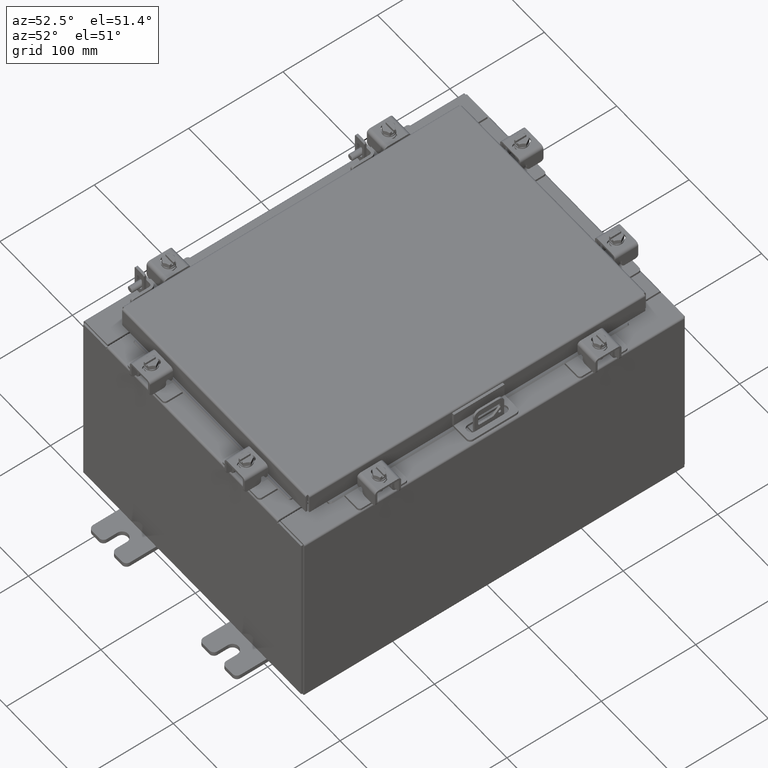
[diagram: clean part render]
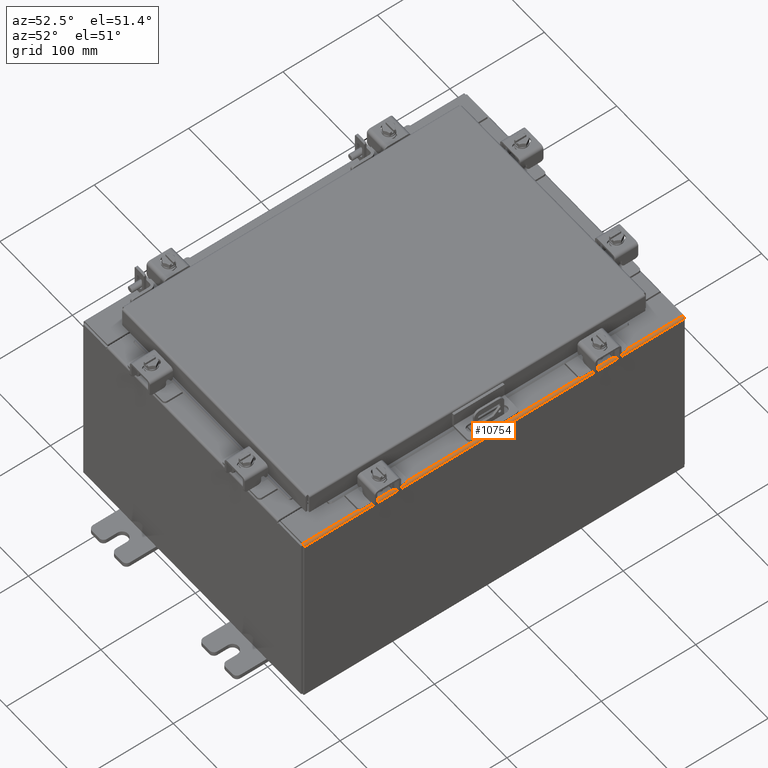
[diagram: same view with one face highlighted and labeled with its STEP entity id]
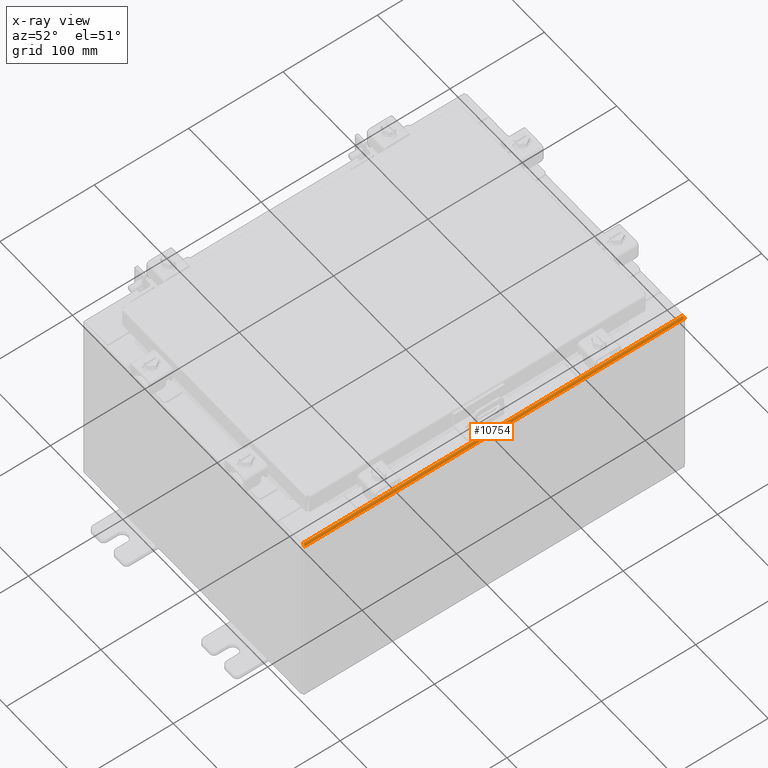
[diagram: x-ray of the same camera — body ghosted, the highlighted face saturated]
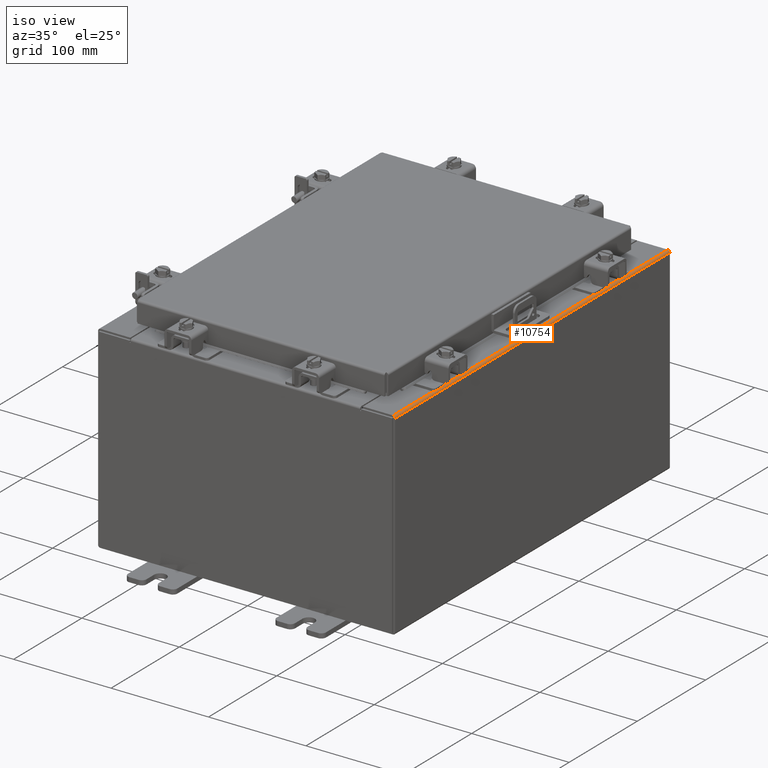
[diagram: same view with one face highlighted and labeled with its STEP entity id]
A machine part, auxiliary view. The second image highlights one B-rep face of the part: STEP entity #10754.
The next image is the same camera in x-ray: the body ghosted, the highlighted face saturated — about 0% of this face is hidden behind the body in this view.
A second angle (iso view) of the same face is appended — the face is thin or edge-on in the first view.
In plain terms, the highlighted cylindrical surface (edge-blend (fillet) strip) has radius 2.2276 mm, axis along (0, 1, 0).
Its self-contained STEP definition (entity closure, byte-faithful):
#1051 = CARTESIAN_POINT ( 'NONE',  ( 6.000000000000026600, -7.925300000000000900, 7.837599999999998300 ) ) ;
#1715 = CARTESIAN_POINT ( 'NONE',  ( 5.912300000000027600, 7.925300000000000900, 7.837599999999999200 ) ) ;
#1762 = CYLINDRICAL_SURFACE ( 'NONE', #18878, 0.08770000000000136000 ) ;
#2294 = ORIENTED_EDGE ( 'NONE', *, *, #6706, .T. ) ;
#3461 = DIRECTION ( 'NONE',  ( 0.0000000000000000000, 0.0000000000000000000, 1.000000000000000000 ) ) ;
#3751 = CARTESIAN_POINT ( 'NONE',  ( 5.912300000000027600, -7.925300000000000900, 7.837599999999999200 ) ) ;
#4029 = AXIS2_PLACEMENT_3D ( 'NONE', #3751, #15712, #5485 ) ;
#4205 = ORIENTED_EDGE ( 'NONE', *, *, #5967, .F. ) ;
#5003 = ORIENTED_EDGE ( 'NONE', *, *, #5519, .F. ) ;
#5325 = DIRECTION ( 'NONE',  ( 1.245996804407854400E-014, 0.0000000000000000000, 1.000000000000000000 ) ) ;
#5451 = CARTESIAN_POINT ( 'NONE',  ( 5.912300000000027600, 7.925300000000000900, 7.925300000000000000 ) ) ;
#5485 = DIRECTION ( 'NONE',  ( 0.0000000000000000000, 0.0000000000000000000, 1.000000000000000000 ) ) ;
#5519 = EDGE_CURVE ( 'NONE', #12760, #13688, #13108, .T. ) ;
#5967 = EDGE_CURVE ( 'NONE', #11531, #14656, #11741, .T. ) ;
#6091 = ORIENTED_EDGE ( 'NONE', *, *, #14939, .F. ) ;
#6482 = DIRECTION ( 'NONE',  ( -6.893992640440775600E-017, -1.000000000000000000, 6.893992640440816300E-017 ) ) ;
#6706 = EDGE_CURVE ( 'NONE', #11531, #13688, #8513, .T. ) ;
#8513 = LINE ( 'NONE', #9834, #12523 ) ;
#8764 = DIRECTION ( 'NONE',  ( 0.0000000000000000000, 1.000000000000000000, 0.0000000000000000000 ) ) ;
#9834 = CARTESIAN_POINT ( 'NONE',  ( 5.912300000000026800, -7.925300000000000900, 7.925300000000000900 ) ) ;
#10467 = AXIS2_PLACEMENT_3D ( 'NONE', #1715, #13720, #3461 ) ;
#10754 = ADVANCED_FACE ( 'NONE', ( #11437 ), #1762, .T. ) ;
#10881 = VECTOR ( 'NONE', #16458, 39.37007874015748100 ) ;
#11437 = FACE_OUTER_BOUND ( 'NONE', #18953, .T. ) ;
#11531 = VERTEX_POINT ( 'NONE', #5451 ) ;
#11741 = CIRCLE ( 'NONE', #10467, 0.08770000000000136000 ) ;
#12194 = CARTESIAN_POINT ( 'NONE',  ( 5.912300000000027600, 7.925300000000000900, 7.837599999999999200 ) ) ;
#12523 = VECTOR ( 'NONE', #6482, 39.37007874015748100 ) ;
#12760 = VERTEX_POINT ( 'NONE', #1051 ) ;
#12804 = CARTESIAN_POINT ( 'NONE',  ( 6.000000000000029300, 7.925300000000000900, 7.837599999999992100 ) ) ;
#13108 = CIRCLE ( 'NONE', #4029, 0.08770000000000136000 ) ;
#13688 = VERTEX_POINT ( 'NONE', #15462 ) ;
#13720 = DIRECTION ( 'NONE',  ( 0.0000000000000000000, 1.000000000000000000, 0.0000000000000000000 ) ) ;
#14656 = VERTEX_POINT ( 'NONE', #12804 ) ;
#14761 = CARTESIAN_POINT ( 'NONE',  ( 6.000000000000029300, 7.925300000000000900, 7.837599999999992100 ) ) ;
#14939 = EDGE_CURVE ( 'NONE', #14656, #12760, #15447, .T. ) ;
#15447 = LINE ( 'NONE', #14761, #10881 ) ;
#15462 = CARTESIAN_POINT ( 'NONE',  ( 5.912300000000027600, -7.925300000000000900, 7.925300000000000900 ) ) ;
#15712 = DIRECTION ( 'NONE',  ( -0.0000000000000000000, -1.000000000000000000, -0.0000000000000000000 ) ) ;
#16458 = DIRECTION ( 'NONE',  ( -0.0000000000000000000, -1.000000000000000000, -0.0000000000000000000 ) ) ;
#18878 = AXIS2_PLACEMENT_3D ( 'NONE', #12194, #8764, #5325 ) ;
#18953 = EDGE_LOOP ( 'NONE', ( #6091, #4205, #2294, #5003 ) ) ;